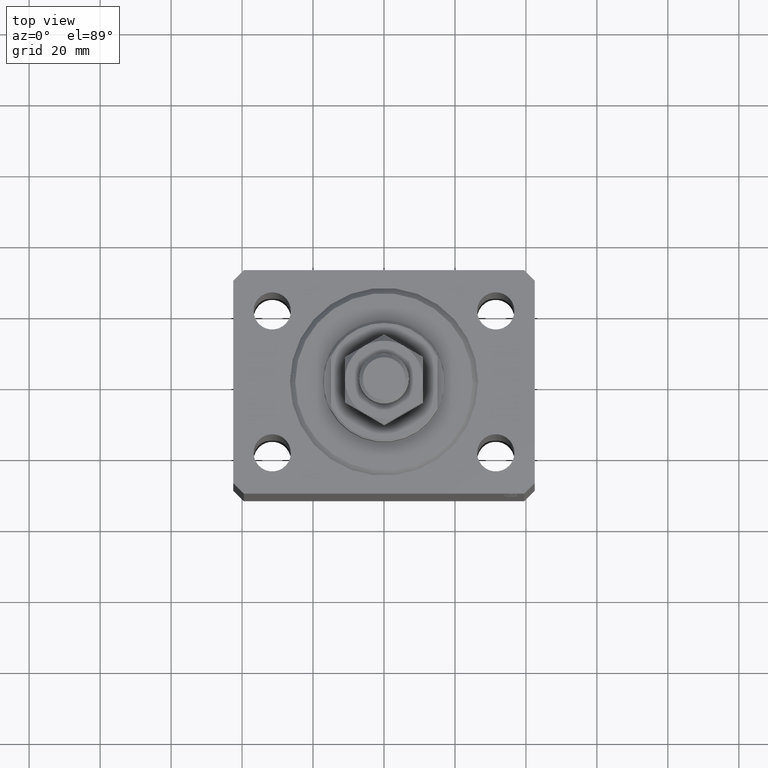
[diagram: clean part render]
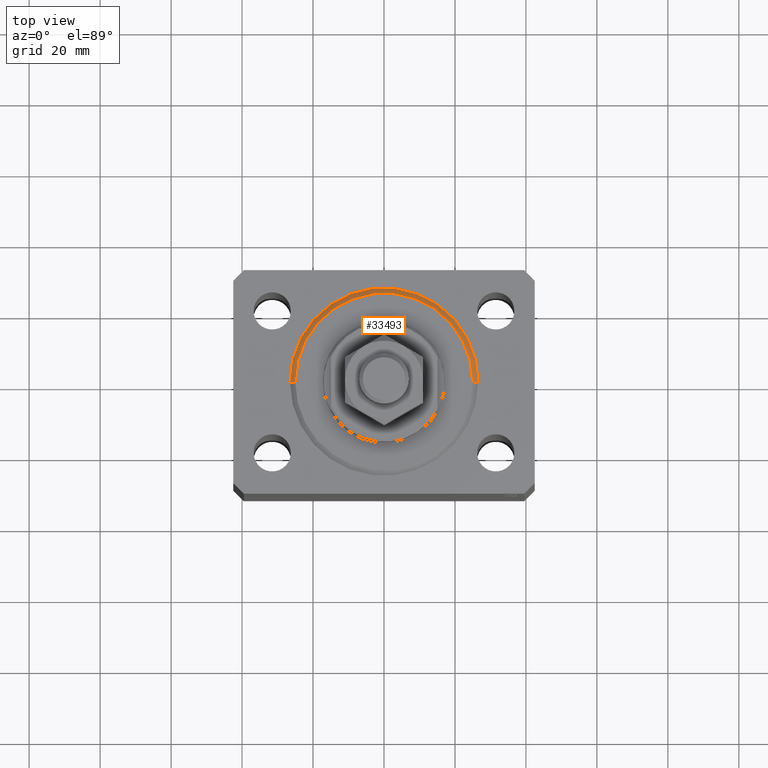
[diagram: same view with one face highlighted and labeled with its STEP entity id]
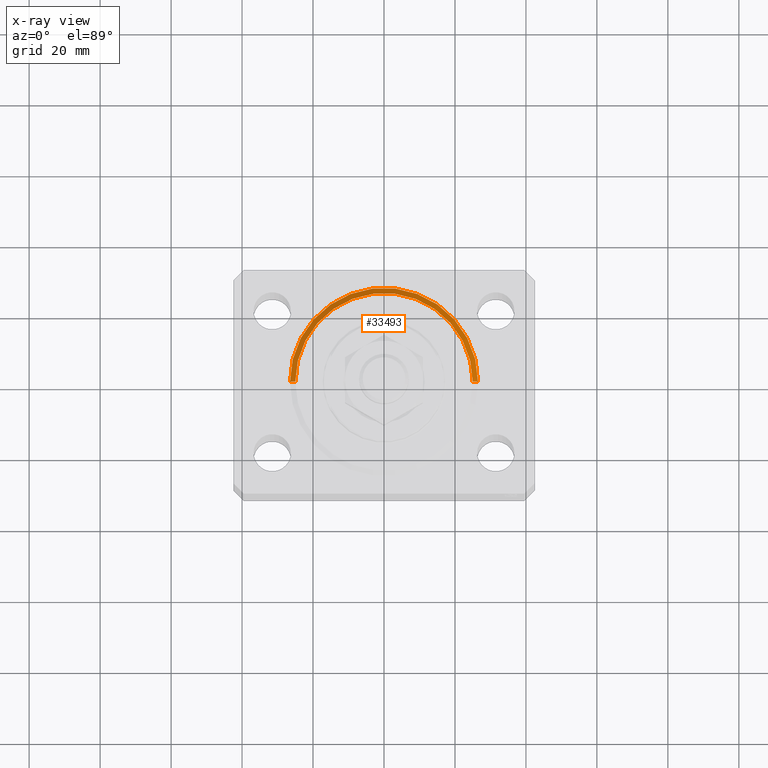
[diagram: x-ray of the same camera — body ghosted, the highlighted face saturated]
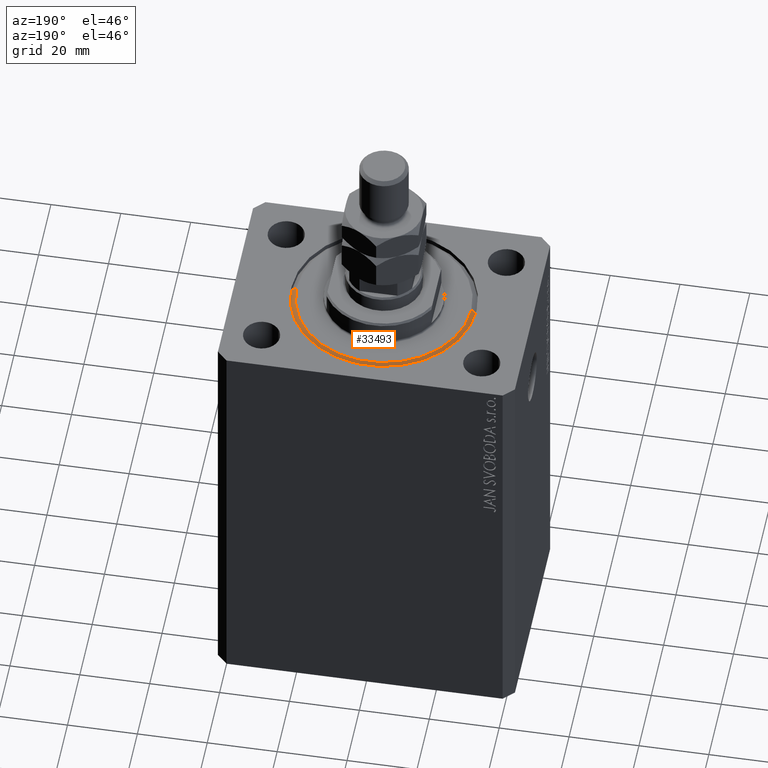
[diagram: same view with one face highlighted and labeled with its STEP entity id]
A machine part, top view. The second image highlights one B-rep face of the part: STEP entity #33493.
The next image is the same camera in x-ray: the body ghosted, the highlighted face saturated — about 0% of this face is hidden behind the body in this view.
A second angle (auxiliary view) of the same face is appended — the face is thin or edge-on in the first view.
In plain terms, the highlighted conical surface has half-angle 45 deg.
Its self-contained STEP definition (entity closure, byte-faithful):
#585 = CARTESIAN_POINT ( 'NONE',  ( 26.50000000000000355, 3.245314017740485765E-15, 1.500000000000046407 ) ) ;
#3663 = VERTEX_POINT ( 'NONE', #9256 ) ;
#3954 = FACE_OUTER_BOUND ( 'NONE', #31689, .T. ) ;
#4092 = AXIS2_PLACEMENT_3D ( 'NONE', #29156, #39216, #32208 ) ;
#5294 = EDGE_CURVE ( 'NONE', #22747, #15535, #7553, .T. ) ;
#7553 = LINE ( 'NONE', #21799, #18259 ) ;
#7754 = DIRECTION ( 'NONE',  ( 1.000000000000000000, 0.000000000000000000, 0.000000000000000000 ) ) ;
#8486 = ORIENTED_EDGE ( 'NONE', *, *, #43493, .F. ) ;
#9256 = CARTESIAN_POINT ( 'NONE',  ( 24.99999999999995026, 0.000000000000000000, 0.000000000000000000 ) ) ;
#9522 = CARTESIAN_POINT ( 'NONE',  ( -24.99999999999995026, 3.153465507804431248E-15, 0.000000000000000000 ) ) ;
#11263 = CARTESIAN_POINT ( 'NONE',  ( 0.000000000000000000, 0.000000000000000000, 0.000000000000000000 ) ) ;
#12259 = CIRCLE ( 'NONE', #42084, 24.99999999999995026 ) ;
#13381 = VERTEX_POINT ( 'NONE', #585 ) ;
#13796 = CONICAL_SURFACE ( 'NONE', #4092, 26.50000000000000355, 0.7853981633974506105 ) ;
#14116 = DIRECTION ( 'NONE',  ( 0.7071067811865491270, 0.000000000000000000, 0.7071067811865459074 ) ) ;
#14903 = VECTOR ( 'NONE', #14116, 1000.000000000000000 ) ;
#15535 = VERTEX_POINT ( 'NONE', #38923 ) ;
#15640 = ORIENTED_EDGE ( 'NONE', *, *, #41325, .F. ) ;
#16034 = EDGE_CURVE ( 'NONE', #3663, #13381, #31851, .T. ) ;
#16591 = ORIENTED_EDGE ( 'NONE', *, *, #5294, .T. ) ;
#17316 = AXIS2_PLACEMENT_3D ( 'NONE', #26056, #19029, #33970 ) ;
#18259 = VECTOR ( 'NONE', #29033, 1000.000000000000000 ) ;
#19029 = DIRECTION ( 'NONE',  ( -0.000000000000000000, -0.000000000000000000, 1.000000000000000000 ) ) ;
#20171 = ORIENTED_EDGE ( 'NONE', *, *, #16034, .F. ) ;
#21799 = CARTESIAN_POINT ( 'NONE',  ( -26.50000000000000355, 3.245314017740486554E-15, 1.500000000000046407 ) ) ;
#22747 = VERTEX_POINT ( 'NONE', #9522 ) ;
#26056 = CARTESIAN_POINT ( 'NONE',  ( 0.000000000000000000, 0.000000000000000000, 1.500000000000046407 ) ) ;
#28553 = DIRECTION ( 'NONE',  ( -0.000000000000000000, -0.000000000000000000, -1.000000000000000000 ) ) ;
#29033 = DIRECTION ( 'NONE',  ( -0.7071067811865491270, 8.659560562354952580E-17, 0.7071067811865459074 ) ) ;
#29156 = CARTESIAN_POINT ( 'NONE',  ( 0.000000000000000000, 0.000000000000000000, 1.500000000000046407 ) ) ;
#31480 = CIRCLE ( 'NONE', #17316, 26.50000000000000355 ) ;
#31689 = EDGE_LOOP ( 'NONE', ( #15640, #16591, #8486, #20171 ) ) ;
#31851 = LINE ( 'NONE', #46098, #14903 ) ;
#32208 = DIRECTION ( 'NONE',  ( 1.000000000000000000, 0.000000000000000000, 0.000000000000000000 ) ) ;
#33493 = ADVANCED_FACE ( 'NONE', ( #3954 ), #13796, .T. ) ;
#33970 = DIRECTION ( 'NONE',  ( 1.000000000000000000, 0.000000000000000000, 0.000000000000000000 ) ) ;
#38923 = CARTESIAN_POINT ( 'NONE',  ( -26.50000000000000355, 0.000000000000000000, 1.500000000000046407 ) ) ;
#39216 = DIRECTION ( 'NONE',  ( -0.000000000000000000, -0.000000000000000000, 1.000000000000000000 ) ) ;
#41325 = EDGE_CURVE ( 'NONE', #22747, #3663, #12259, .T. ) ;
#42084 = AXIS2_PLACEMENT_3D ( 'NONE', #11263, #28553, #7754 ) ;
#43493 = EDGE_CURVE ( 'NONE', #13381, #15535, #31480, .T. ) ;
#46098 = CARTESIAN_POINT ( 'NONE',  ( 26.50000000000000355, 0.000000000000000000, 1.500000000000046407 ) ) ;